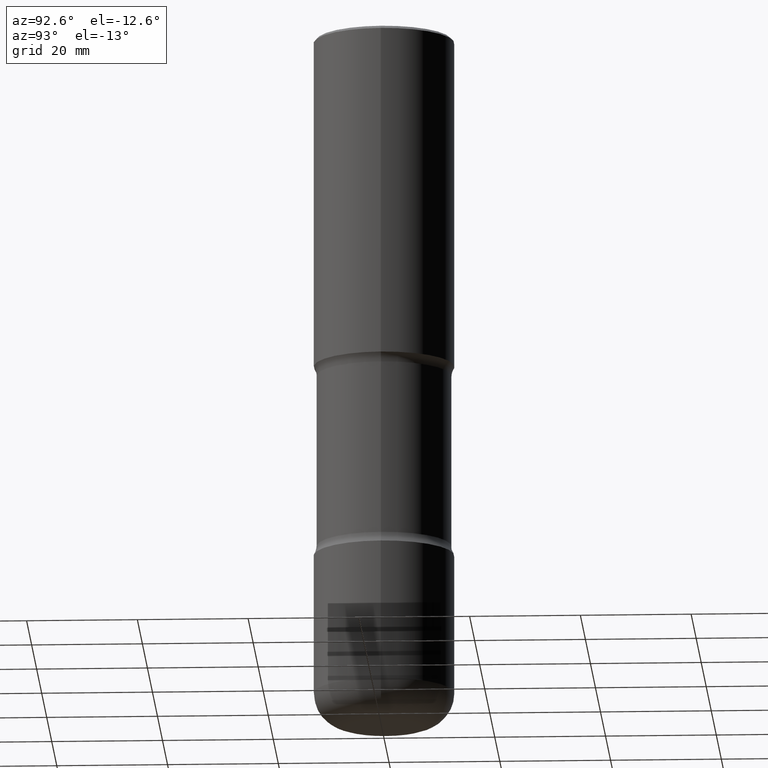
[diagram: clean part render]
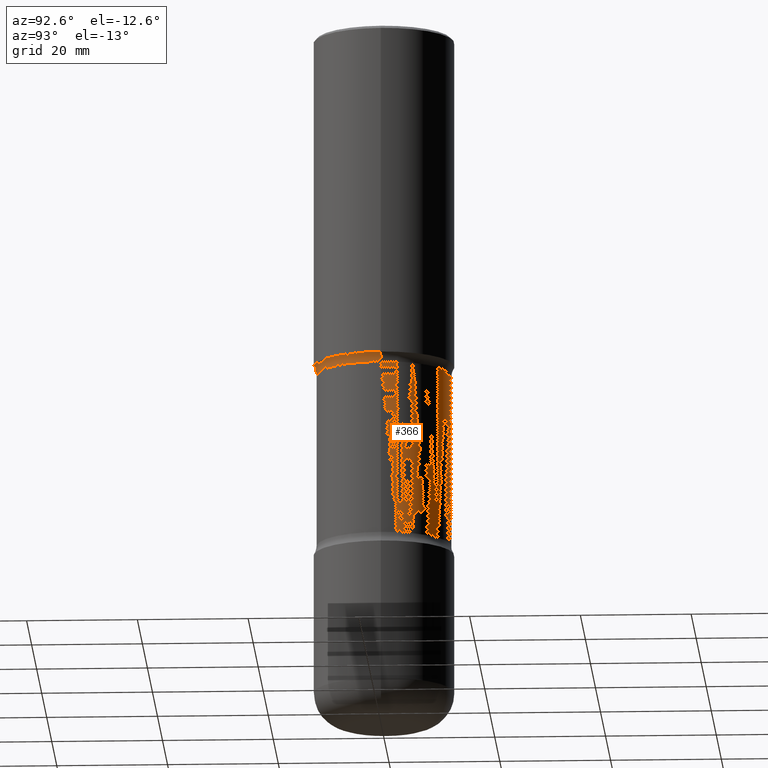
[diagram: same view with one face highlighted and labeled with its STEP entity id]
A machine part, auxiliary view. The second image highlights one B-rep face of the part: STEP entity #366.
In plain terms, the highlighted toroidal blend (fillet) surface has major radius 15.367 mm and minor (blend) radius 3.175 mm.
Its self-contained STEP definition (entity closure, byte-faithful):
#22 = FACE_OUTER_BOUND ( 'NONE', #263, .T. ) ;
#39 = EDGE_CURVE ( 'NONE', #290, #650, #381, .T. ) ;
#84 = DIRECTION ( 'NONE',  ( 1.000000000000000000, -6.982962677686264344E-15, 0.000000000000000000 ) ) ;
#105 = CIRCLE ( 'NONE', #395, 0.1249999999999999029 ) ;
#119 = CIRCLE ( 'NONE', #576, 0.4800000000000000933 ) ;
#136 = ORIENTED_EDGE ( 'NONE', *, *, #238, .T. ) ;
#144 = EDGE_CURVE ( 'NONE', #290, #740, #348, .T. ) ;
#153 = DIRECTION ( 'NONE',  ( -2.445468806185136597E-29, 3.491481338843145583E-15, 1.000000000000000000 ) ) ;
#213 = DIRECTION ( 'NONE',  ( 1.000000000000000000, -6.982962677686265133E-15, 0.000000000000000000 ) ) ;
#219 = CARTESIAN_POINT ( 'NONE',  ( 5.973848178759569401E-29, -8.529071965452053594E-15, -2.442823299831252903 ) ) ;
#238 = EDGE_CURVE ( 'NONE', #650, #501, #119, .T. ) ;
#241 = DIRECTION ( 'NONE',  ( 1.000000000000000000, -6.982962677686268288E-15, 0.000000000000000000 ) ) ;
#263 = EDGE_LOOP ( 'NONE', ( #438, #444, #136, #308 ) ) ;
#278 = DIRECTION ( 'NONE',  ( -1.000000000000000000, 7.105427357601001859E-15, 0.000000000000000000 ) ) ;
#290 = VERTEX_POINT ( 'NONE', #636 ) ;
#292 = DIRECTION ( 'NONE',  ( 1.000000000000000000, -6.982962677686265922E-15, 4.883557194083112901E-29 ) ) ;
#298 = DIRECTION ( 'NONE',  ( -2.445468806185136597E-29, 3.491481338843145583E-15, 1.000000000000000000 ) ) ;
#307 = CARTESIAN_POINT ( 'NONE',  ( 0.4800000000000000933, -1.188089405074146193E-14, -2.442823299831252903 ) ) ;
#308 = ORIENTED_EDGE ( 'NONE', *, *, #550, .F. ) ;
#333 = DIRECTION ( 'NONE',  ( 7.105427357601001859E-15, 1.000000000000000000, -3.491481338843145583E-15 ) ) ;
#348 = CIRCLE ( 'NONE', #605, 0.5000000000000000000 ) ;
#356 = CARTESIAN_POINT ( 'NONE',  ( 0.5000000000000001110, -1.178374951859560347E-14, -2.375000000000000000 ) ) ;
#366 = ADVANCED_FACE ( 'NONE', ( #22 ), #412, .F. ) ;
#381 = CIRCLE ( 'NONE', #779, 0.1249999999999999029 ) ;
#395 = AXIS2_PLACEMENT_3D ( 'NONE', #783, #676, #241 ) ;
#412 = TOROIDAL_SURFACE ( 'NONE', #780, 0.6049999999999998712, 0.1249999999999998751 ) ;
#438 = ORIENTED_EDGE ( 'NONE', *, *, #144, .F. ) ;
#444 = ORIENTED_EDGE ( 'NONE', *, *, #39, .T. ) ;
#501 = VERTEX_POINT ( 'NONE', #307 ) ;
#526 = CARTESIAN_POINT ( 'NONE',  ( -0.6049999999999998712, -4.230288414103449963E-15, -2.442823299831253347 ) ) ;
#532 = CARTESIAN_POINT ( 'NONE',  ( 5.807988414689700538E-29, -8.292268179752471696E-15, -2.375000000000000000 ) ) ;
#550 = EDGE_CURVE ( 'NONE', #740, #501, #105, .T. ) ;
#576 = AXIS2_PLACEMENT_3D ( 'NONE', #219, #704, #84 ) ;
#605 = AXIS2_PLACEMENT_3D ( 'NONE', #532, #153, #213 ) ;
#636 = CARTESIAN_POINT ( 'NONE',  ( -0.5000000000000001110, -4.739554500951969977E-15, -2.375000000000000000 ) ) ;
#650 = VERTEX_POINT ( 'NONE', #691 ) ;
#676 = DIRECTION ( 'NONE',  ( -6.982962677686266711E-15, -1.000000000000000000, 3.491481338843145583E-15 ) ) ;
#691 = CARTESIAN_POINT ( 'NONE',  ( -0.4800000000000001488, -4.929010667377771008E-15, -2.442823299831252903 ) ) ;
#704 = DIRECTION ( 'NONE',  ( -2.445468806185136597E-29, 3.491481338843145583E-15, 1.000000000000000000 ) ) ;
#740 = VERTEX_POINT ( 'NONE', #356 ) ;
#768 = CARTESIAN_POINT ( 'NONE',  ( 5.973848178759570522E-29, -8.529071965452055172E-15, -2.442823299831253347 ) ) ;
#779 = AXIS2_PLACEMENT_3D ( 'NONE', #526, #333, #278 ) ;
#780 = AXIS2_PLACEMENT_3D ( 'NONE', #768, #298, #292 ) ;
#783 = CARTESIAN_POINT ( 'NONE',  ( 0.6049999999999998712, -1.275376438545224527E-14, -2.442823299831253347 ) ) ;